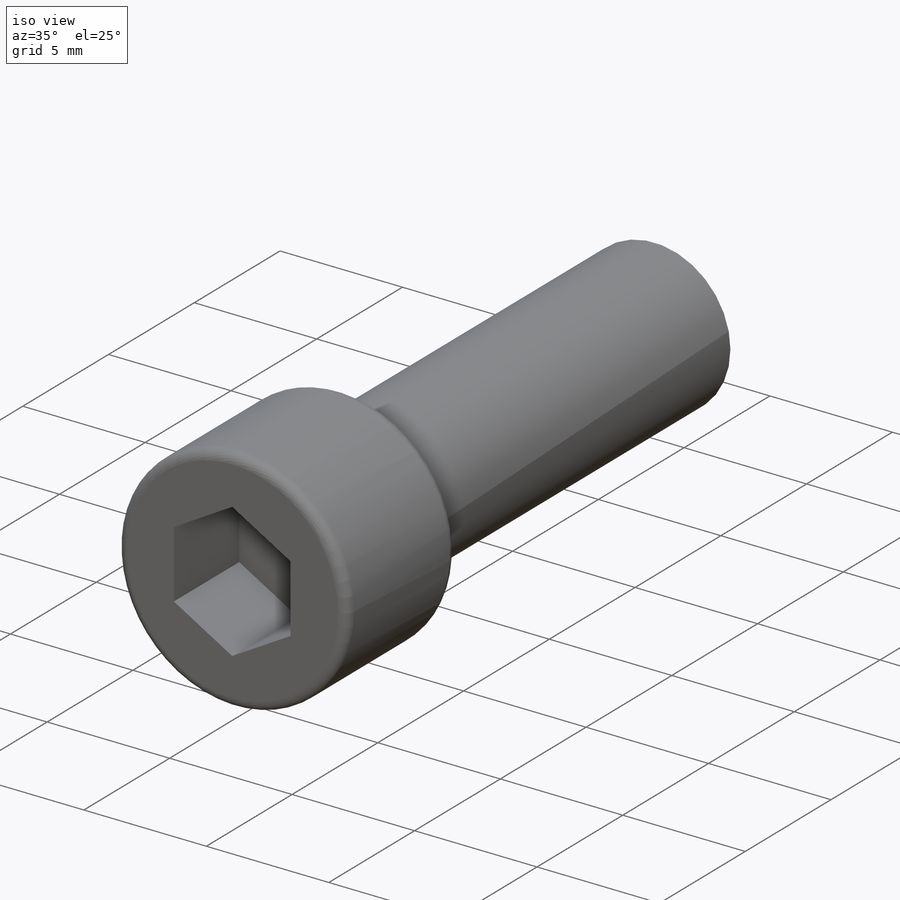
[diagram: iso view]
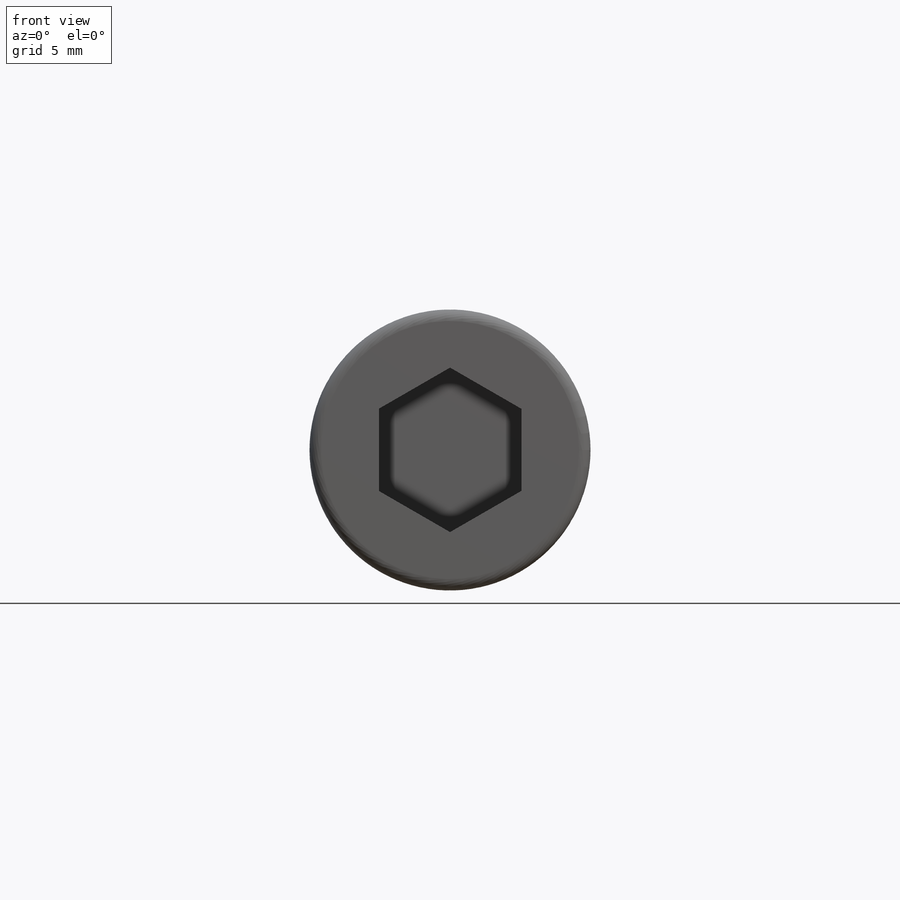
[diagram: front view]
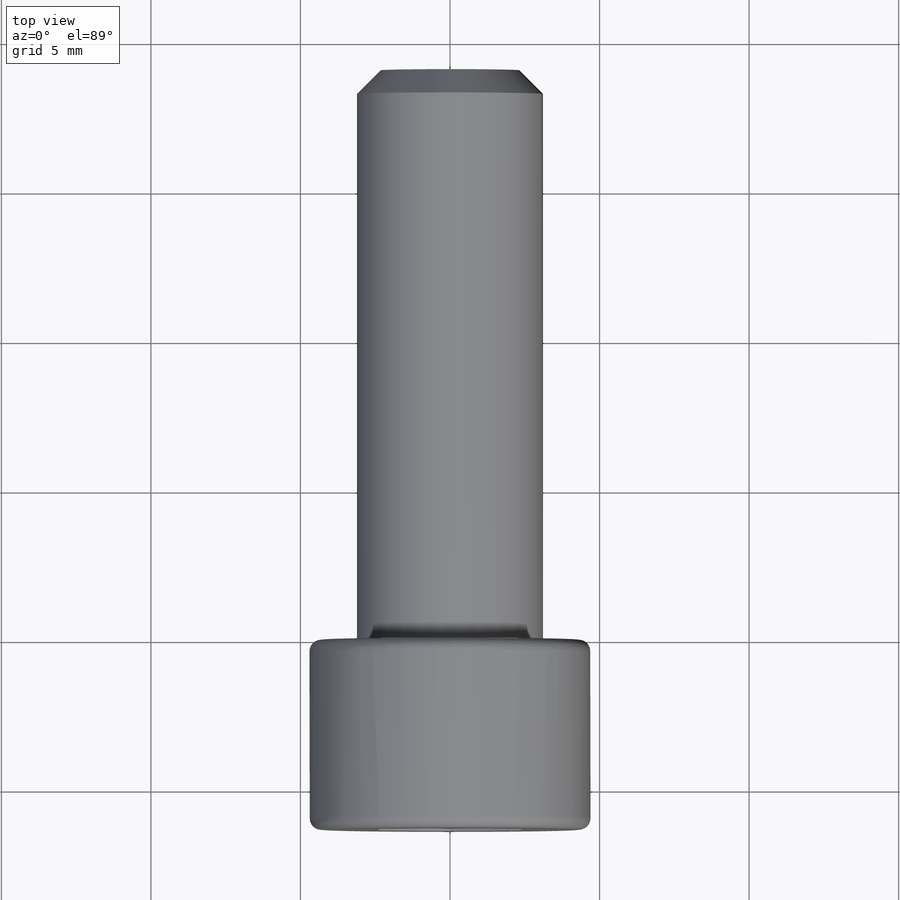
[diagram: top view]
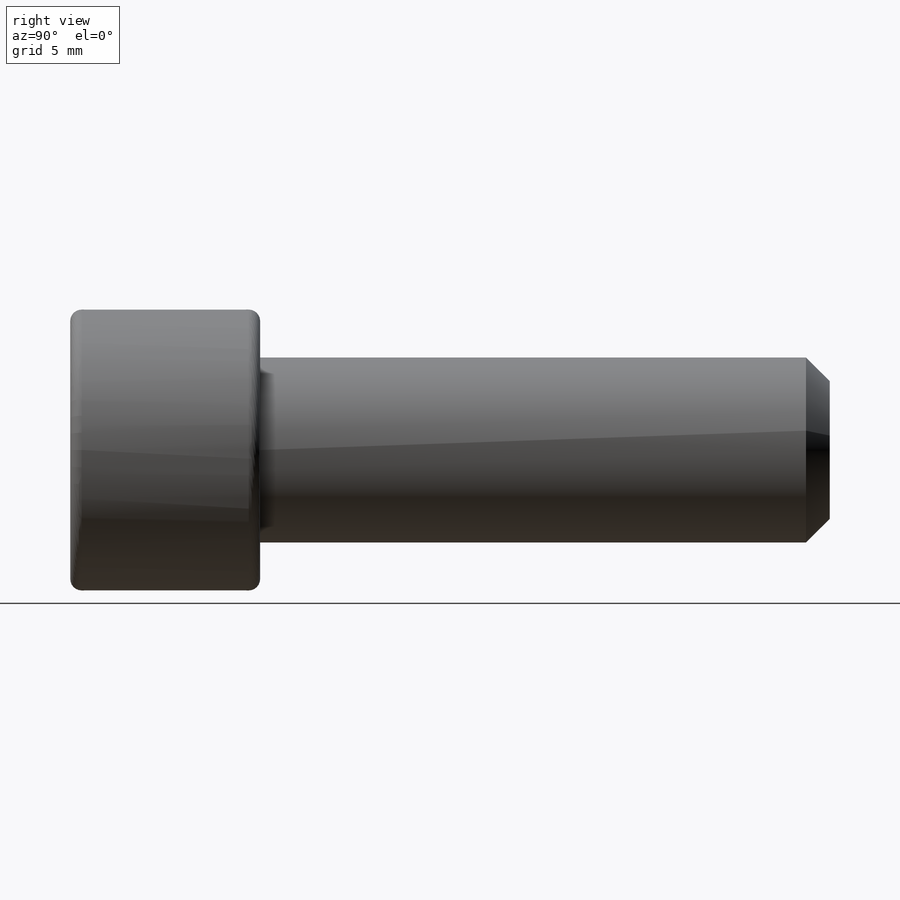
[diagram: right view]
SOLIDWORKS PART (.sldprt)
format: sldprt  version: not decoded by parser v0  size: 323,072 bytes
history: native  units: mm
features: sketch x3, fillet x2, material x1, revolve x1, extrude x1, cut_extrude x1, chamfer x1 (+16 scaffold rows collapsed; 1 parser-record rows omitted)
feature tree (27):
  parser-record x1  (decoder bookkeeping rows leaked as tree rows — omitted from the tree; the rows remain in map.json)
  scaffold x16  (default folders/planes/origin — collapsed)
  material  "Galvanized Steel"
  sketch  "Sketch1"  dims[D1=4.699mm D2=6.35mm]
  revolve  "Revolve1"  Angle=360deg
  sketch  "Sketch2"  dims[D1=6.223mm]
  extrude  "Extrude1"  Depth=19.05mm
  sketch  "Sketch3"  dims[c1.D1=~2.38125mm c1.D2=~2.38125mm c2.D1=~2.38125mm c2.D2=~1.374815mm c2.D3=~2.749631mm c2.D4=~1.374815mm c2.D5=~2.749631mm c3.D2=~1.374815mm c3.D3=~2.749631mm]
  cut_extrude  "Extrude2"  Depth=3.81mm
  chamfer  "Chamfer1"  Distance=0.79375mm Angle=45deg
  fillet  "Fillet1"  Radius=0.381mm
  fillet  "Fillet2"  Radius=0.381mm
decode coverage: 9 of 9 modeling features carry decoded parameters
note: ~ marks probable driven/reference dimensions
note: suppression state not decoded; provenance and decode notes live in map.json
